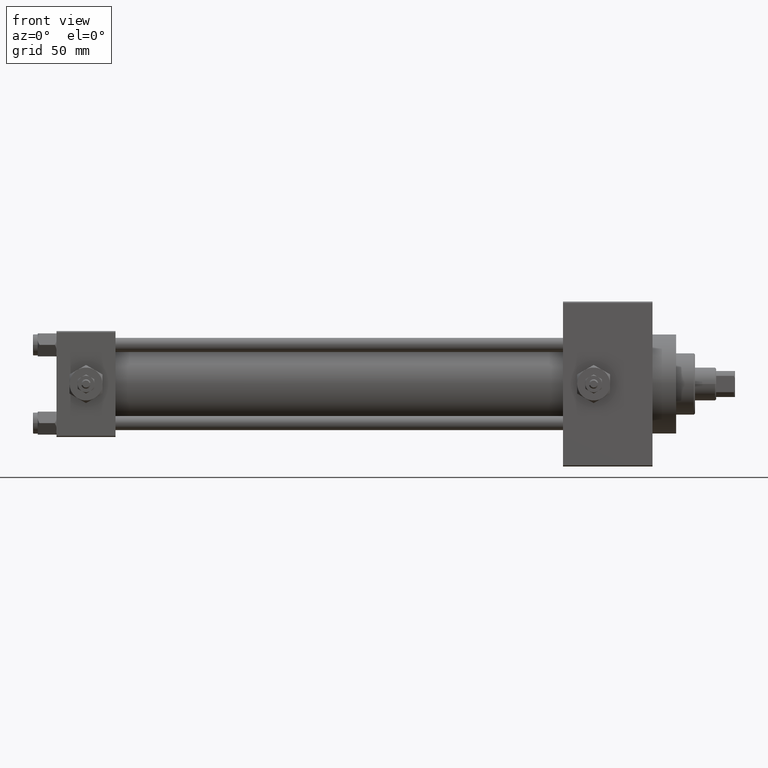
[diagram: clean part render]
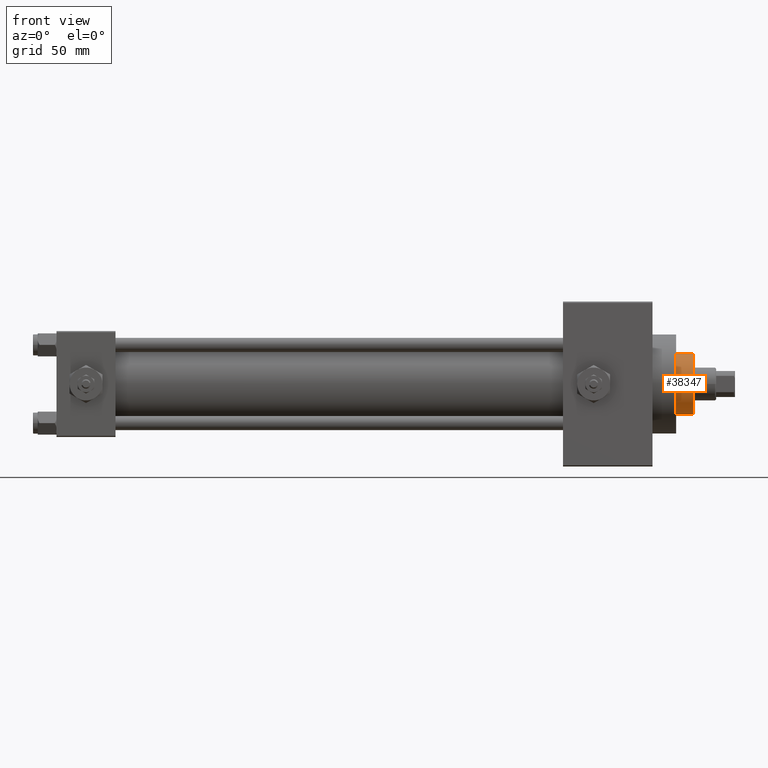
[diagram: same view with one face highlighted and labeled with its STEP entity id]
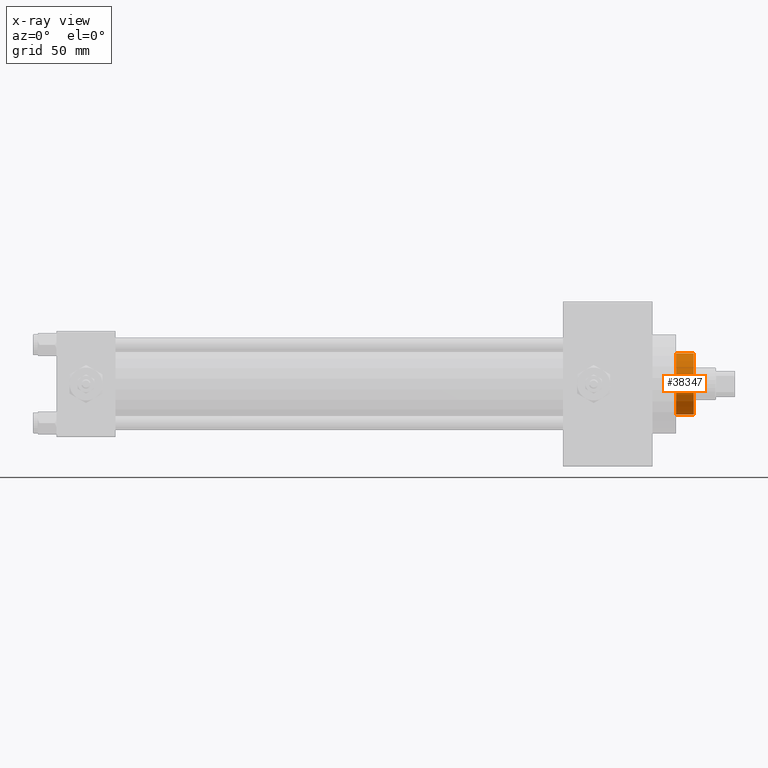
[diagram: x-ray of the same camera — body ghosted, the highlighted face saturated]
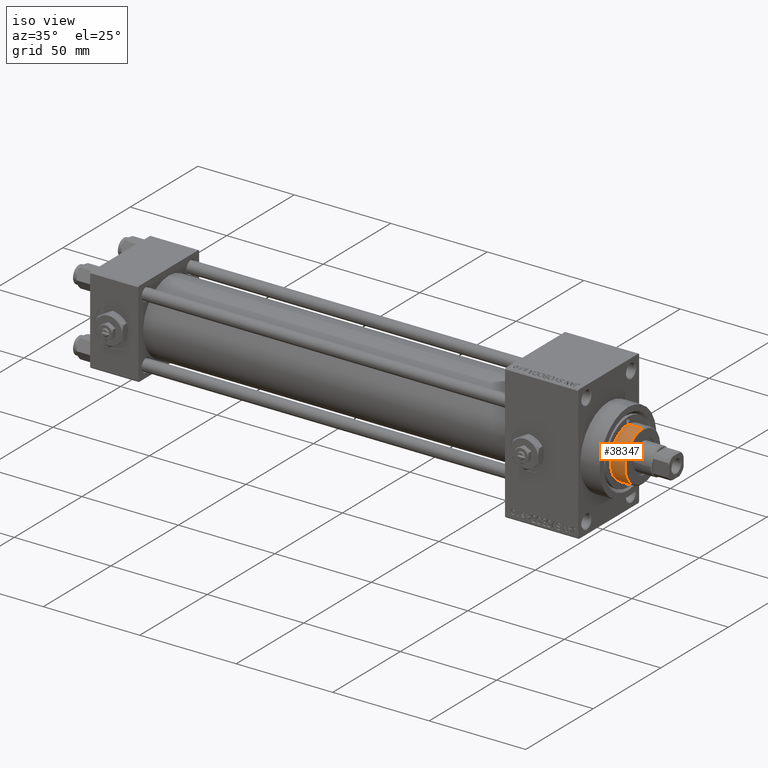
[diagram: same view with one face highlighted and labeled with its STEP entity id]
A machine part, front view. The second image highlights one B-rep face of the part: STEP entity #38347.
The next image is the same camera in x-ray: the body ghosted, the highlighted face saturated — about 0% of this face is hidden behind the body in this view.
A second angle (iso view) of the same face is appended — the face is thin or edge-on in the first view.
In plain terms, the highlighted cylindrical surface (edge-blend (fillet) strip) has radius 13 mm, axis along (-1, 0, 0).
Its self-contained STEP definition (entity closure, byte-faithful):
#318 = CIRCLE ( 'NONE', #14550, 13.00000000000000178 ) ;
#861 = ORIENTED_EDGE ( 'NONE', *, *, #48801, .T. ) ;
#1928 = CYLINDRICAL_SURFACE ( 'NONE', #2963, 13.00000000000000178 ) ;
#2507 = ORIENTED_EDGE ( 'NONE', *, *, #14882, .T. ) ;
#2963 = AXIS2_PLACEMENT_3D ( 'NONE', #24135, #9899, #20397 ) ;
#5668 = FACE_OUTER_BOUND ( 'NONE', #22613, .T. ) ;
#6894 = DIRECTION ( 'NONE',  ( 1.000000000000000000, 0.000000000000000000, 0.000000000000000000 ) ) ;
#9899 = DIRECTION ( 'NONE',  ( -0.000000000000000000, -0.000000000000000000, -1.000000000000000000 ) ) ;
#11374 = CARTESIAN_POINT ( 'NONE',  ( -13.00000000000000178, 0.000000000000000000, 50.75999999999997669 ) ) ;
#11586 = VERTEX_POINT ( 'NONE', #23930 ) ;
#14550 = AXIS2_PLACEMENT_3D ( 'NONE', #45881, #30701, #23710 ) ;
#14882 = EDGE_CURVE ( 'NONE', #40494, #11586, #16184, .T. ) ;
#15561 = CARTESIAN_POINT ( 'NONE',  ( 13.00000000000000178, 1.592040838891559293E-15, 50.75999999999997669 ) ) ;
#16184 = LINE ( 'NONE', #46325, #47640 ) ;
#17726 = CIRCLE ( 'NONE', #34472, 13.00000000000000178 ) ;
#18000 = CARTESIAN_POINT ( 'NONE',  ( -13.00000000000000178, 0.000000000000000000, 43.25999999999999801 ) ) ;
#20397 = DIRECTION ( 'NONE',  ( -1.000000000000000000, 0.000000000000000000, 0.000000000000000000 ) ) ;
#21080 = VERTEX_POINT ( 'NONE', #11374 ) ;
#22397 = VERTEX_POINT ( 'NONE', #18000 ) ;
#22613 = EDGE_LOOP ( 'NONE', ( #26178, #2507, #861, #24793 ) ) ;
#23710 = DIRECTION ( 'NONE',  ( 1.000000000000000000, 0.000000000000000000, 0.000000000000000000 ) ) ;
#23930 = CARTESIAN_POINT ( 'NONE',  ( 13.00000000000000178, 1.592040838891559293E-15, 43.25999999999999801 ) ) ;
#24135 = CARTESIAN_POINT ( 'NONE',  ( 0.000000000000000000, 0.000000000000000000, 51.25999999999999801 ) ) ;
#24793 = ORIENTED_EDGE ( 'NONE', *, *, #40922, .F. ) ;
#25544 = LINE ( 'NONE', #43980, #30235 ) ;
#26178 = ORIENTED_EDGE ( 'NONE', *, *, #30188, .T. ) ;
#29027 = DIRECTION ( 'NONE',  ( -0.000000000000000000, -0.000000000000000000, -1.000000000000000000 ) ) ;
#30188 = EDGE_CURVE ( 'NONE', #21080, #40494, #318, .T. ) ;
#30235 = VECTOR ( 'NONE', #29027, 1000.000000000000000 ) ;
#30701 = DIRECTION ( 'NONE',  ( 0.000000000000000000, 0.000000000000000000, -1.000000000000000000 ) ) ;
#31402 = DIRECTION ( 'NONE',  ( -0.000000000000000000, -0.000000000000000000, -1.000000000000000000 ) ) ;
#34472 = AXIS2_PLACEMENT_3D ( 'NONE', #45272, #41538, #6894 ) ;
#38347 = ADVANCED_FACE ( 'NONE', ( #5668 ), #1928, .T. ) ;
#40494 = VERTEX_POINT ( 'NONE', #15561 ) ;
#40922 = EDGE_CURVE ( 'NONE', #21080, #22397, #25544, .T. ) ;
#41538 = DIRECTION ( 'NONE',  ( 0.000000000000000000, 0.000000000000000000, 1.000000000000000000 ) ) ;
#43980 = CARTESIAN_POINT ( 'NONE',  ( -13.00000000000000178, 0.000000000000000000, 51.25999999999999801 ) ) ;
#45272 = CARTESIAN_POINT ( 'NONE',  ( 0.000000000000000000, 0.000000000000000000, 43.25999999999999801 ) ) ;
#45881 = CARTESIAN_POINT ( 'NONE',  ( 0.000000000000000000, 0.000000000000000000, 50.75999999999997669 ) ) ;
#46325 = CARTESIAN_POINT ( 'NONE',  ( 13.00000000000000178, 1.592040838891559293E-15, 51.25999999999999801 ) ) ;
#47640 = VECTOR ( 'NONE', #31402, 1000.000000000000000 ) ;
#48801 = EDGE_CURVE ( 'NONE', #11586, #22397, #17726, .T. ) ;